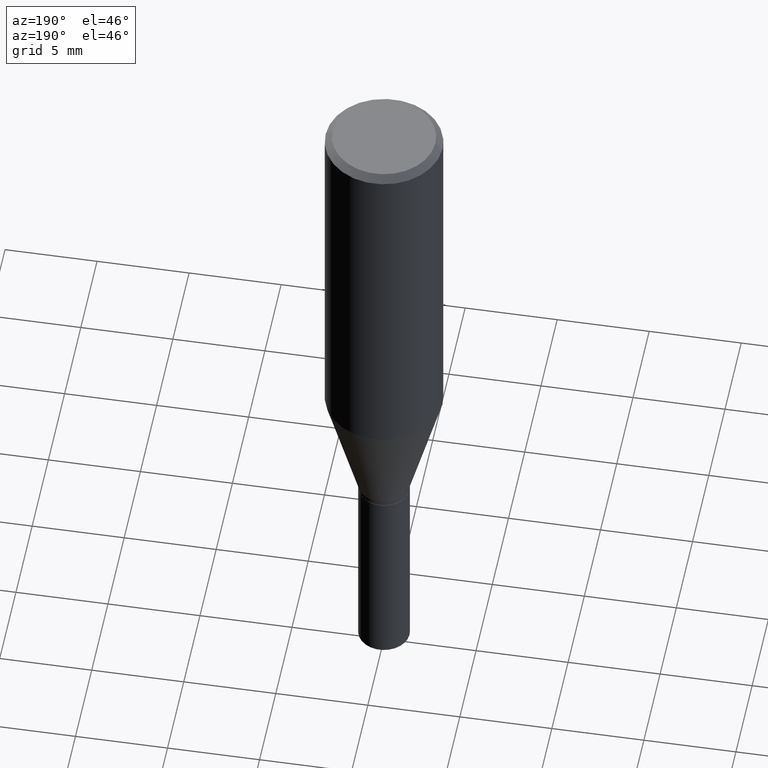
[diagram: clean part render]
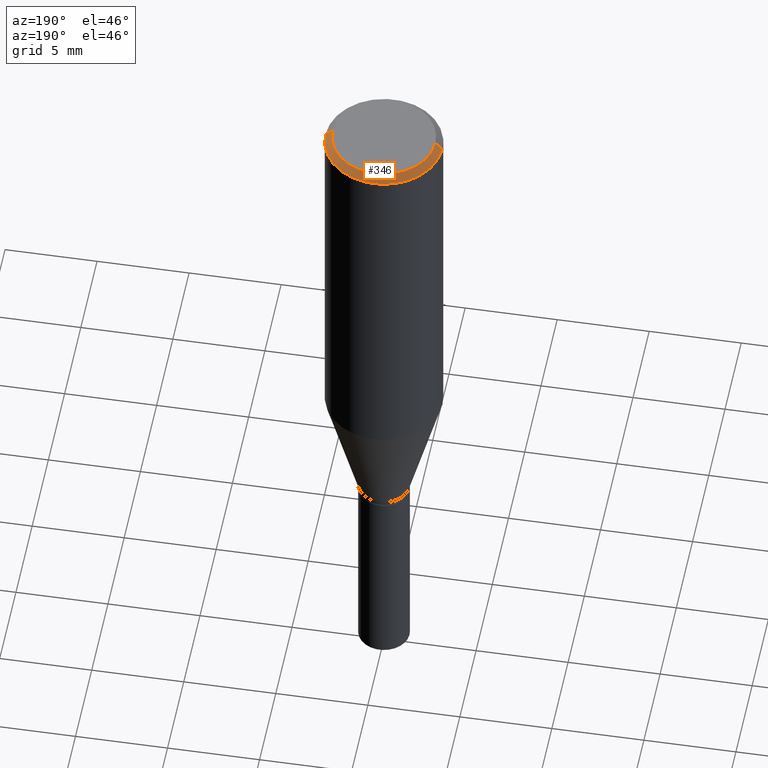
[diagram: same view with one face highlighted and labeled with its STEP entity id]
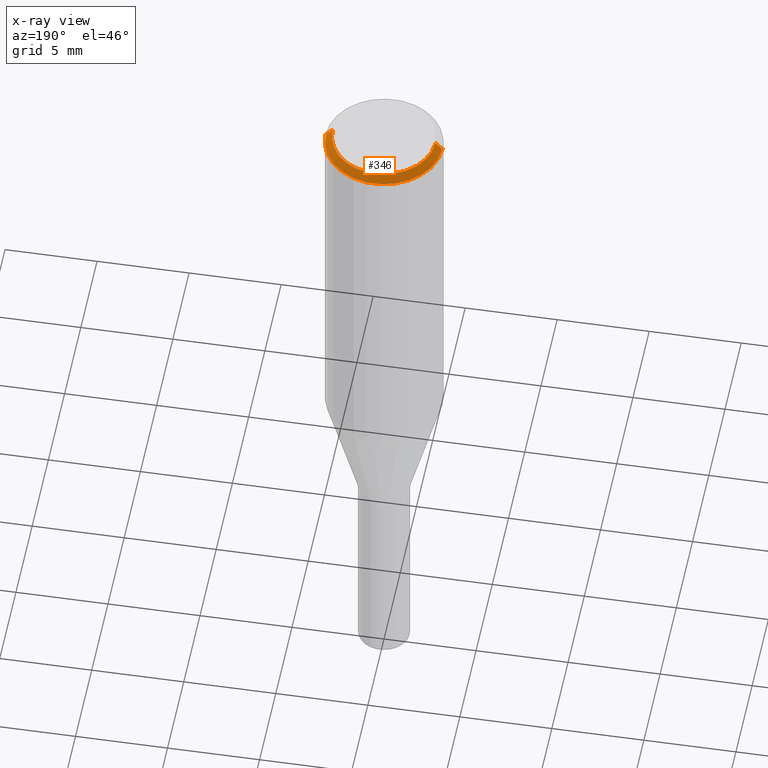
[diagram: x-ray of the same camera — body ghosted, the highlighted face saturated]
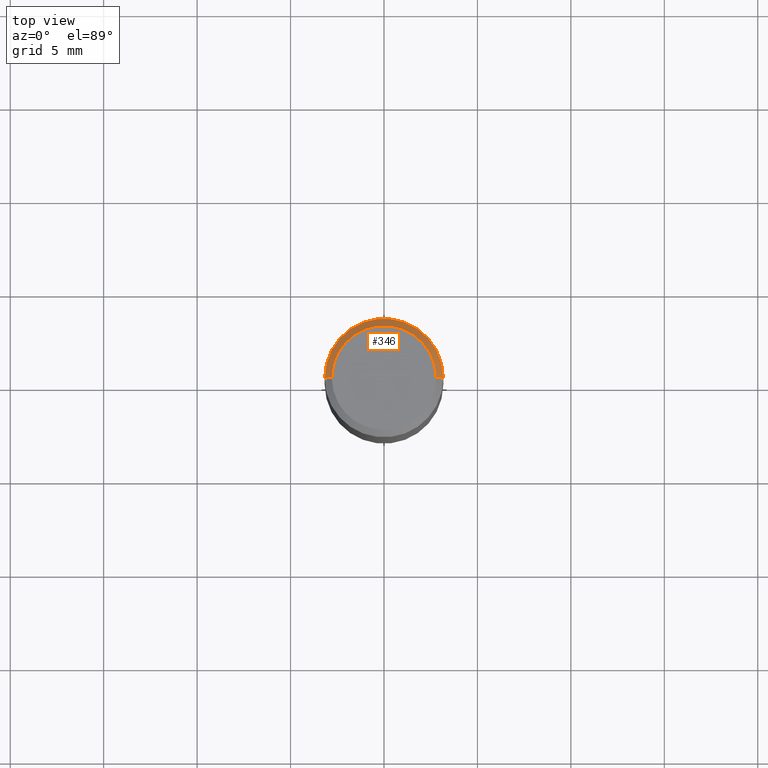
[diagram: same view with one face highlighted and labeled with its STEP entity id]
A machine part, auxiliary view. The second image highlights one B-rep face of the part: STEP entity #346.
The next image is the same camera in x-ray: the body ghosted, the highlighted face saturated — about 0% of this face is hidden behind the body in this view.
A second angle (top view) of the same face is appended — the face is thin or edge-on in the first view.
In plain terms, the highlighted conical surface has half-angle 45 deg.
Its self-contained STEP definition (entity closure, byte-faithful):
#8 = CARTESIAN_POINT ( 'NONE',  ( 3.668203209277705088E-31, -5.237222008264718399E-17, -0.01499999999999999944 ) ) ;
#63 = CARTESIAN_POINT ( 'NONE',  ( 3.668203209277705088E-31, -5.237222008264718399E-17, -0.01499999999999999944 ) ) ;
#67 = LINE ( 'NONE', #172, #131 ) ;
#75 = ORIENTED_EDGE ( 'NONE', *, *, #95, .F. ) ;
#95 = EDGE_CURVE ( 'NONE', #378, #146, #387, .T. ) ;
#103 = CARTESIAN_POINT ( 'NONE',  ( 0.1250000000000000000, -9.252425547934304180E-16, -0.01499999999999999944 ) ) ;
#124 = CIRCLE ( 'NONE', #382, 0.1250000000000000000 ) ;
#131 = VECTOR ( 'NONE', #327, 39.37007874015748854 ) ;
#146 = VERTEX_POINT ( 'NONE', #171 ) ;
#167 = VERTEX_POINT ( 'NONE', #279 ) ;
#170 = DIRECTION ( 'NONE',  ( -0.7071067811865524577, 2.468850131082309125E-15, -0.7071067811865424657 ) ) ;
#171 = CARTESIAN_POINT ( 'NONE',  ( -0.1250000000000000000, -5.165088154517157584E-16, -0.01499999999999999944 ) ) ;
#172 = CARTESIAN_POINT ( 'NONE',  ( 0.1250000000000000000, -9.099344698040885245E-16, -0.01499999999999999944 ) ) ;
#192 = DIRECTION ( 'NONE',  ( -2.445468806185136597E-29, 3.491481338843145583E-15, 1.000000000000000000 ) ) ;
#200 = CIRCLE ( 'NONE', #459, 0.1100000000000000006 ) ;
#212 = EDGE_CURVE ( 'NONE', #259, #146, #124, .T. ) ;
#219 = CARTESIAN_POINT ( 'NONE',  ( -0.1100000000000000006, 7.943120045868123256E-16, -2.196503395834883125E-16 ) ) ;
#232 = DIRECTION ( 'NONE',  ( 1.000000000000000000, -6.982962677686266711E-15, 4.880309236314112093E-29 ) ) ;
#250 = DIRECTION ( 'NONE',  ( -1.000000000000000000, 6.982962677686266711E-15, 0.000000000000000000 ) ) ;
#259 = VERTEX_POINT ( 'NONE', #103 ) ;
#264 = CARTESIAN_POINT ( 'NONE',  ( 5.371480537193796611E-45, -7.669050617262902492E-31, -2.196503395834828644E-16 ) ) ;
#266 = EDGE_CURVE ( 'NONE', #167, #259, #67, .T. ) ;
#279 = CARTESIAN_POINT ( 'NONE',  ( 0.1100000000000000006, -8.322946247794788808E-16, -2.196503395834772438E-16 ) ) ;
#304 = DIRECTION ( 'NONE',  ( -2.445468806185136597E-29, 3.491481338843145583E-15, 1.000000000000000000 ) ) ;
#325 = ORIENTED_EDGE ( 'NONE', *, *, #212, .T. ) ;
#327 = DIRECTION ( 'NONE',  ( 0.7071067811865524577, -7.319954787623271823E-15, -0.7071067811865424657 ) ) ;
#333 = EDGE_LOOP ( 'NONE', ( #340, #375, #325, #75 ) ) ;
#340 = ORIENTED_EDGE ( 'NONE', *, *, #426, .F. ) ;
#344 = CONICAL_SURFACE ( 'NONE', #454, 0.1250000000000000000, 0.7853981633974553844 ) ;
#346 = ADVANCED_FACE ( 'NONE', ( #406 ), #344, .T. ) ;
#347 = CARTESIAN_POINT ( 'NONE',  ( -0.1250000000000000000, 8.204981146281362596E-16, -0.01499999999999999944 ) ) ;
#375 = ORIENTED_EDGE ( 'NONE', *, *, #266, .T. ) ;
#378 = VERTEX_POINT ( 'NONE', #219 ) ;
#382 = AXIS2_PLACEMENT_3D ( 'NONE', #63, #304, #383 ) ;
#383 = DIRECTION ( 'NONE',  ( 1.000000000000000000, -6.982962677686266711E-15, 0.000000000000000000 ) ) ;
#387 = LINE ( 'NONE', #347, #388 ) ;
#388 = VECTOR ( 'NONE', #170, 39.37007874015748854 ) ;
#406 = FACE_OUTER_BOUND ( 'NONE', #333, .T. ) ;
#426 = EDGE_CURVE ( 'NONE', #167, #378, #200, .T. ) ;
#428 = DIRECTION ( 'NONE',  ( 2.445468806185136597E-29, -3.491481338843145583E-15, -1.000000000000000000 ) ) ;
#454 = AXIS2_PLACEMENT_3D ( 'NONE', #8, #428, #250 ) ;
#459 = AXIS2_PLACEMENT_3D ( 'NONE', #264, #192, #232 ) ;